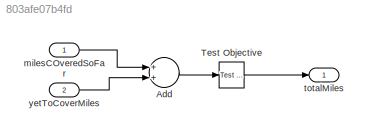
MODEL slx_803afe07b4fd
KIND model
CONFIG AbsTol = auto
CONFIG EnableMultiTasking = off
CONFIG FixedStep = auto
CONFIG MaxStep = auto
CONFIG MinStep = auto
CONFIG RelTol = 1e-3
CONFIG SampleTimeConstraint = Unconstrained
CONFIG Solver = FixedStepAuto
CONFIG SolverName = FixedStepAuto
CONFIG StartTime = 0.0
CONFIG StopTime = 100
BLOCK [Sum] Add
  InputSameDT = off
  OutDataTypeStr = Inherit: Inherit via internal rule
  Ports = [2, 1]
  SaturateOnIntegerOverflow = off
BLOCK [Reference] Test Objective  REF=sldvlib/Objectives and Constraints/Test Objective
  AttributesFormatString = %<intervals>
  Ports = [1, 1]
  SourceBlock = sldvlib/Objectives and Constraints/Test Objective
  SourceProductBaseCode = SL
  SourceProductName = Simulink
  SourceType = Design Verifier Test Objective
BLOCK [Inport] milesCOveredSoFar
  IconDisplay = Port number
  OutDataTypeStr = double
BLOCK [Outport] totalMiles
  IconDisplay = Port number
  OutDataTypeStr = double
BLOCK [Inport] yetToCoverMiles
  IconDisplay = Port number
  OutDataTypeStr = double
  Port = 2
LINE Add:1 -> Test Objective:1
LINE Test Objective:1 -> totalMiles:1
LINE milesCOveredSoFar:1 -> Add:1
LINE yetToCoverMiles:1 -> Add:2
